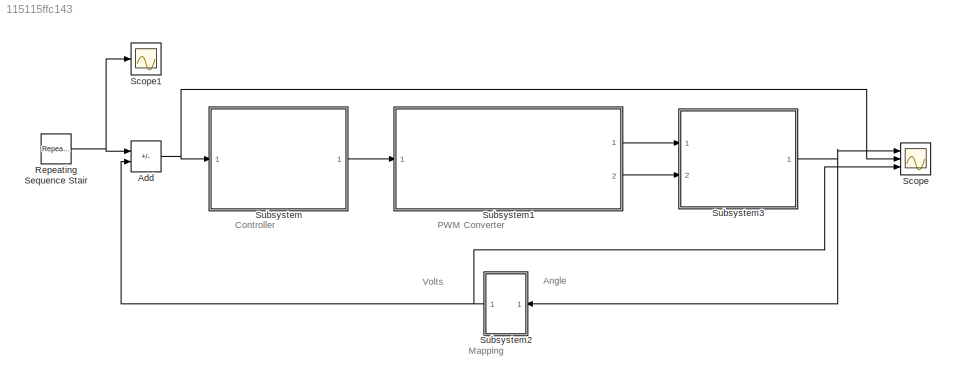
MODEL slx_115115ffc143
KIND model
CONFIG AbsTol = auto
CONFIG EnableMultiTasking = off
CONFIG FixedStep = auto
CONFIG MaxStep = auto
CONFIG MinStep = auto
CONFIG RelTol = 1e-3
CONFIG SampleTimeConstraint = Unconstrained
CONFIG SolverName = VariableStepAuto
CONFIG StartTime = 0.0
CONFIG StopTime = 20
WORKSPACE source: mxarray member
WORKSPACE J = 0.000245
WORKSPACE Kp = 0.3
WORKSPACE ki = 0.2
WORKSPACE ts = 0.01
BLOCK [Sum] Add
  IconShape = rectangular
  Inputs = +-
  Ports = [2, 1]
BLOCK [Reference] Repeating Sequence Stair  REF=simulink/Sources/Repeating
Sequence
Stair
  Ports = [0, 1]
  SourceBlock = simulink/Sources/Repeating\nSequence\nStair
  SourceProductBaseCode = SL
  SourceType = Repeating Sequence Stair
BLOCK [Scope] Scope
  Floating = off
  NumInputPorts = 3
  Ports = [3]
  ScopeSpecificationString = Simulink.scopes.TimeScopeBlockCfg('CurrentConfiguration', extmgr.ConfigurationSet(extmgr.Configuration('Core','General UI',true),extmgr.Configuration('Core','Source UI',true),extmgr.Configuration('Sources','WiredSimulink',true),extmgr.Configuration('Visuals','Time Domain',true,'SerializedDisplays',{struct('MinYLimReal','-4.5','MaxYLimReal','5.5','YLabelReal','','MinYLimMag','0.00000','MaxYLimMag',...<+1420ch>
BLOCK [Scope] Scope1
  Floating = off
  NumInputPorts = 1
  Ports = [1]
  ScopeSpecificationString = Simulink.scopes.TimeScopeBlockCfg('CurrentConfiguration', extmgr.ConfigurationSet(extmgr.Configuration('Core','General UI',true),extmgr.Configuration('Core','Source UI',true),extmgr.Configuration('Sources','WiredSimulink',true,'DataLoggingVariableName','ScopeData1'),extmgr.Configuration('Visuals','Time Domain',true,'SerializedDisplays',{struct('MinYLimReal','0.5','MaxYLimReal','5.5','YLabelReal','...<+1408ch>
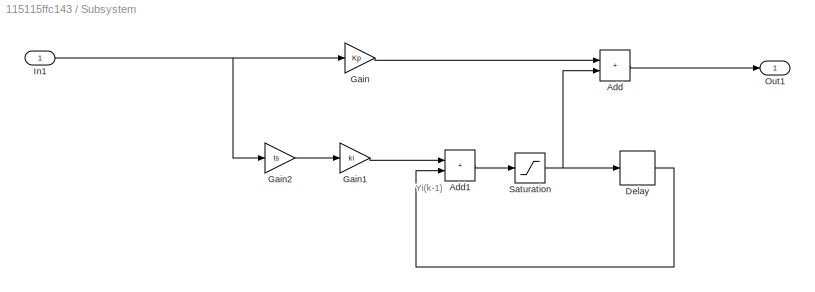
BLOCK [SubSystem] Subsystem
  Ports = [1, 1]
  RequestExecContextInheritance = off
BLOCK [Sum] Subsystem/Add
  IconShape = rectangular
  Ports = [2, 1]
BLOCK [Sum] Subsystem/Add1
  IconShape = rectangular
  Ports = [2, 1]
BLOCK [Delay] Subsystem/Delay
  DelayLength = 1
  InputPortMap = u0
  Ports = [1, 1]
BLOCK [Gain] Subsystem/Gain
  Gain = Kp
BLOCK [Gain] Subsystem/Gain1
  Gain = ki
BLOCK [Gain] Subsystem/Gain2
  Gain = ts
BLOCK [Inport] Subsystem/In1
BLOCK [Outport] Subsystem/Out1
BLOCK [Saturate] Subsystem/Saturation
  LowerLimit = -1
  UpperLimit = 1
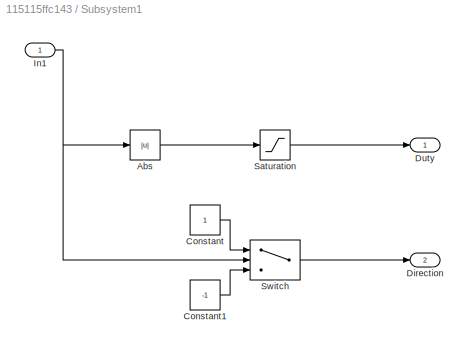
BLOCK [SubSystem] Subsystem1
  Ports = [1, 2]
  RequestExecContextInheritance = off
BLOCK [Abs] Subsystem1/Abs
  SaturateOnIntegerOverflow = off
BLOCK [Constant] Subsystem1/Constant
BLOCK [Constant] Subsystem1/Constant1
  Value = -1
BLOCK [Outport] Subsystem1/Direction
  Port = 2
BLOCK [Outport] Subsystem1/Duty
BLOCK [Inport] Subsystem1/In1
BLOCK [Saturate] Subsystem1/Saturation
  LowerLimit = 0
  UpperLimit = 1
BLOCK [Switch] Subsystem1/Switch
  InputSameDT = off
  SaturateOnIntegerOverflow = off
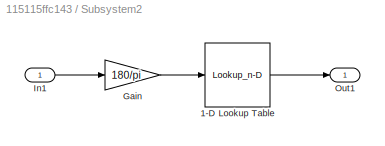
BLOCK [SubSystem] Subsystem2
  Ports = [1, 1]
  RequestExecContextInheritance = off
BLOCK [Lookup_n-D] Subsystem2/1-D Lookup Table
  BreakpointsForDimension1 = [0 90]
  InputPortMap = u0
  InternalRulePriority = Speed
  NumberOfTableDimensions = 1
  Ports = [1, 1]
  RndMeth = Simplest
  Table = [0.5 4.5]
BLOCK [Gain] Subsystem2/Gain
  Gain = 180/pi
BLOCK [Inport] Subsystem2/In1
BLOCK [Outport] Subsystem2/Out1
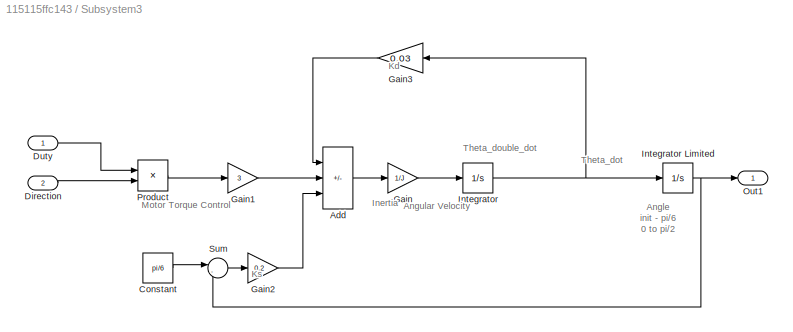
BLOCK [SubSystem] Subsystem3
  Ports = [2, 1]
  RequestExecContextInheritance = off
BLOCK [Sum] Subsystem3/Add
  IconShape = rectangular
  Inputs = -+-
  Ports = [3, 1]
BLOCK [Constant] Subsystem3/Constant
  Value = pi/6
BLOCK [Inport] Subsystem3/Direction
  Port = 2
BLOCK [Inport] Subsystem3/Duty
BLOCK [Gain] Subsystem3/Gain
  Gain = 1/J
BLOCK [Gain] Subsystem3/Gain1
  Gain = 3
BLOCK [Gain] Subsystem3/Gain2
  Gain = 0.2
BLOCK [Gain] Subsystem3/Gain3
  Gain = 0.03
BLOCK [Integrator] Subsystem3/Integrator
  Ports = [1, 1]
BLOCK [Integrator] Subsystem3/Integrator Limited
  InitialCondition = pi/6
  LimitOutput = on
  LowerSaturationLimit = 0
  Ports = [1, 1]
  UpperSaturationLimit = pi/2
BLOCK [Outport] Subsystem3/Out1
BLOCK [Product] Subsystem3/Product
  Ports = [2, 1]
BLOCK [Sum] Subsystem3/Sum
  Inputs = |-+
  Ports = [2, 1]
ANNOTATION (root): Angle
ANNOTATION (root): Controller
ANNOTATION (root): Mapping
ANNOTATION (root): PWM Converter
ANNOTATION (root): Volts
ANNOTATION Subsystem: Yi(k-1)
ANNOTATION Subsystem3: Angle init - pi/6 0 to pi/2
ANNOTATION Subsystem3: Angular Velocity
ANNOTATION Subsystem3: Inertia
ANNOTATION Subsystem3: Kd
ANNOTATION Subsystem3: Ks
ANNOTATION Subsystem3: Motor Torque Control
ANNOTATION Subsystem3: Theta_dot
ANNOTATION Subsystem3: Theta_double_dot
NET Add:1 -> Scope:2, Subsystem:1
NET Repeating Sequence Stair:1 -> Add:1, Scope1:1
LINE Subsystem/Add1:1 -> Subsystem/Saturation:1
LINE Subsystem/Add:1 -> Subsystem/Out1:1
LINE Subsystem/Delay:1 -> Subsystem/Add1:2
LINE Subsystem/Gain1:1 -> Subsystem/Add1:1
LINE Subsystem/Gain2:1 -> Subsystem/Gain1:1
LINE Subsystem/Gain:1 -> Subsystem/Add:1
NET Subsystem/In1:1 -> Subsystem/Gain2:1, Subsystem/Gain:1
NET Subsystem/Saturation:1 -> Subsystem/Add:2, Subsystem/Delay:1
LINE Subsystem1/Abs:1 -> Subsystem1/Saturation:1
LINE Subsystem1/Constant1:1 -> Subsystem1/Switch:3
LINE Subsystem1/Constant:1 -> Subsystem1/Switch:1
NET Subsystem1/In1:1 -> Subsystem1/Abs:1, Subsystem1/Switch:2
LINE Subsystem1/Saturation:1 -> Subsystem1/Duty:1
LINE Subsystem1/Switch:1 -> Subsystem1/Direction:1
LINE Subsystem1:1 -> Subsystem3:1
LINE Subsystem1:2 -> Subsystem3:2
LINE Subsystem2/1-D Lookup Table:1 -> Subsystem2/Out1:1
LINE Subsystem2/Gain:1 -> Subsystem2/1-D Lookup Table:1
LINE Subsystem2/In1:1 -> Subsystem2/Gain:1
NET Subsystem2:1 -> Add:2, Scope:3
LINE Subsystem3/Add:1 -> Subsystem3/Gain:1
LINE Subsystem3/Constant:1 -> Subsystem3/Sum:1
LINE Subsystem3/Direction:1 -> Subsystem3/Product:2
LINE Subsystem3/Duty:1 -> Subsystem3/Product:1
LINE Subsystem3/Gain1:1 -> Subsystem3/Add:2
LINE Subsystem3/Gain2:1 -> Subsystem3/Add:3
LINE Subsystem3/Gain3:1 -> Subsystem3/Add:1
LINE Subsystem3/Gain:1 -> Subsystem3/Integrator:1
NET Subsystem3/Integrator Limited:1 -> Subsystem3/Out1:1, Subsystem3/Sum:2
NET Subsystem3/Integrator:1 -> Subsystem3/Gain3:1, Subsystem3/Integrator Limited:1
LINE Subsystem3/Product:1 -> Subsystem3/Gain1:1
LINE Subsystem3/Sum:1 -> Subsystem3/Gain2:1
NET Subsystem3:1 -> Scope:1, Subsystem2:1
LINE Subsystem:1 -> Subsystem1:1
note: NET lines group one-source signal fan-out (src -> all destinations, sorted); 1:1 wires keep LINE
